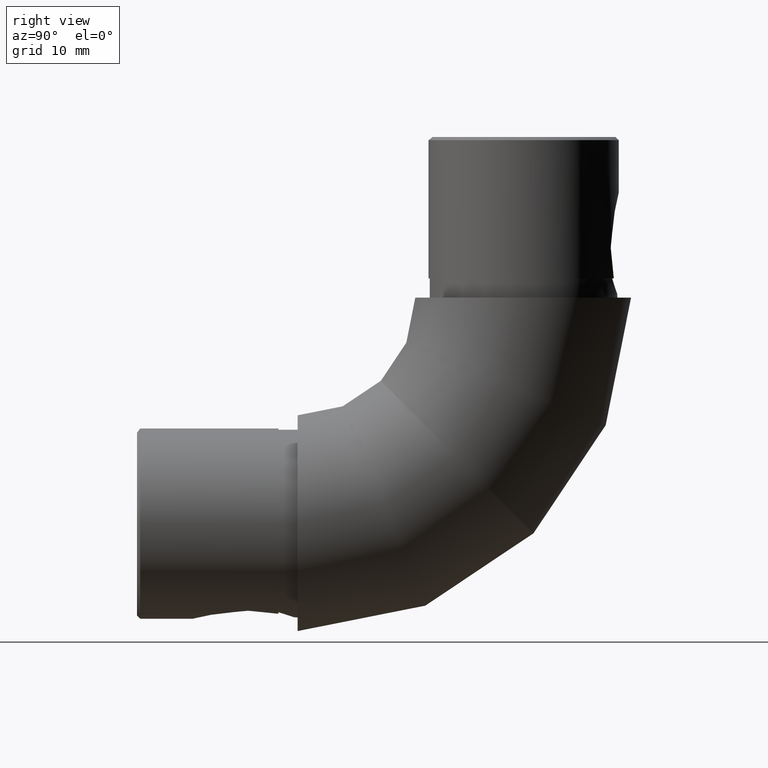
[diagram: clean part render]
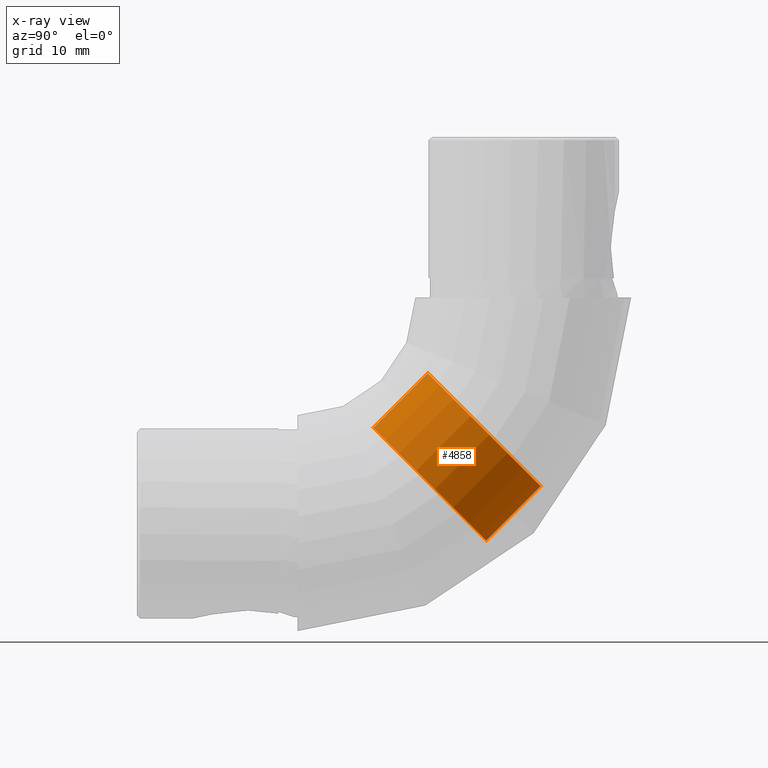
[diagram: x-ray — body ghosted, one internal face saturated and labeled with its STEP entity id]
A machine part, right view, then the same camera in x-ray: the body is ghosted and one INTERNAL B-rep face — a face not visible from any outside direction — is saturated and labeled: STEP entity #4858.
In plain terms, the highlighted cylindrical surface (bore or boss wall) has radius 12.5 mm, axis along (0, -0.7071, -0.7071).
Its self-contained STEP definition (entity closure, byte-faithful):
#19 = ORIENTED_EDGE ( 'NONE', *, *, #6658, .T. ) ;
#92 = AXIS2_PLACEMENT_3D ( 'NONE', #9017, #3271, #13689 ) ;
#1102 = EDGE_LOOP ( 'NONE', ( #19 ) ) ;
#1116 = AXIS2_PLACEMENT_3D ( 'NONE', #1725, #12407, #12347 ) ;
#1181 = CARTESIAN_POINT ( 'NONE',  ( 0.0000000000000000000, 6.000000000000000900, 12.50000000000000000 ) ) ;
#1725 = CARTESIAN_POINT ( 'NONE',  ( 0.0000000000000000000, -5.999999999999978700, 0.0000000000000000000 ) ) ;
#2237 = ORIENTED_EDGE ( 'NONE', *, *, #14295, .T. ) ;
#3087 = VERTEX_POINT ( 'NONE', #14230 ) ;
#3271 = DIRECTION ( 'NONE',  ( -0.0000000000000000000, -1.000000000000000000, -0.0000000000000000000 ) ) ;
#4858 = ADVANCED_FACE ( 'NONE', ( #8312, #9242 ), #7930, .T. ) ;
#5180 = DIRECTION ( 'NONE',  ( 0.0000000000000000000, -1.000000000000000000, 0.0000000000000000000 ) ) ;
#6658 = EDGE_CURVE ( 'NONE', #7330, #7330, #8446, .T. ) ;
#7034 = EDGE_LOOP ( 'NONE', ( #2237 ) ) ;
#7330 = VERTEX_POINT ( 'NONE', #1181 ) ;
#7930 = CYLINDRICAL_SURFACE ( 'NONE', #92, 12.50000000000000000 ) ;
#8312 = FACE_OUTER_BOUND ( 'NONE', #7034, .T. ) ;
#8446 = CIRCLE ( 'NONE', #10400, 12.50000000000000000 ) ;
#8657 = CARTESIAN_POINT ( 'NONE',  ( 0.0000000000000000000, 6.000000000000000900, 0.0000000000000000000 ) ) ;
#9017 = CARTESIAN_POINT ( 'NONE',  ( 0.0000000000000000000, 6.500000000000000000, 0.0000000000000000000 ) ) ;
#9238 = CIRCLE ( 'NONE', #1116, 12.50000000000000000 ) ;
#9242 = FACE_OUTER_BOUND ( 'NONE', #1102, .T. ) ;
#10400 = AXIS2_PLACEMENT_3D ( 'NONE', #8657, #5180, #12413 ) ;
#12347 = DIRECTION ( 'NONE',  ( 0.0000000000000000000, 0.0000000000000000000, 1.000000000000000000 ) ) ;
#12407 = DIRECTION ( 'NONE',  ( -0.0000000000000000000, 1.000000000000000000, -0.0000000000000000000 ) ) ;
#12413 = DIRECTION ( 'NONE',  ( 0.0000000000000000000, 0.0000000000000000000, 1.000000000000000000 ) ) ;
#13689 = DIRECTION ( 'NONE',  ( 0.0000000000000000000, 0.0000000000000000000, -1.000000000000000000 ) ) ;
#14230 = CARTESIAN_POINT ( 'NONE',  ( 0.0000000000000000000, -5.999999999999978700, 12.50000000000000000 ) ) ;
#14295 = EDGE_CURVE ( 'NONE', #3087, #3087, #9238, .T. ) ;